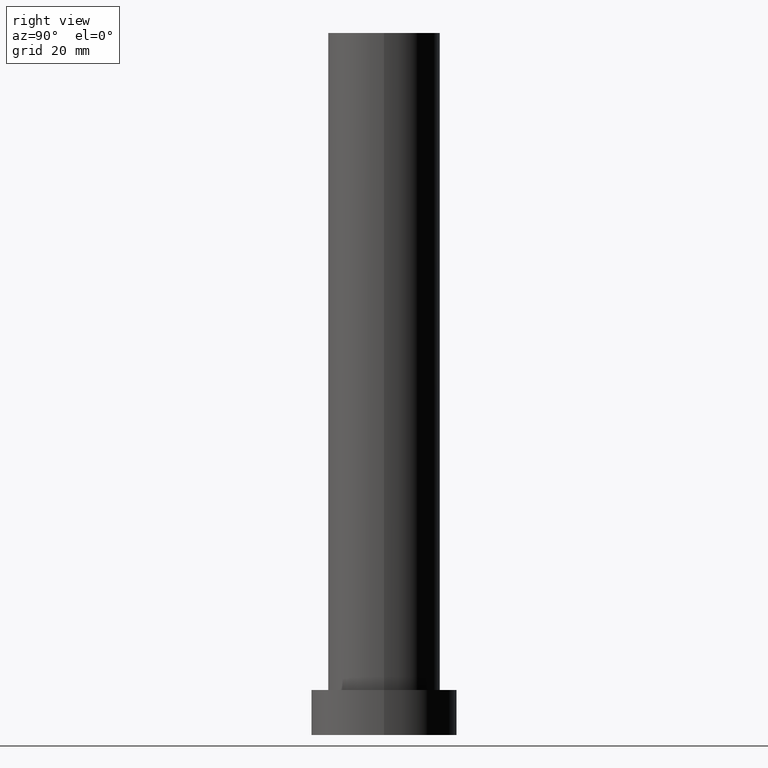
[diagram: clean part render]
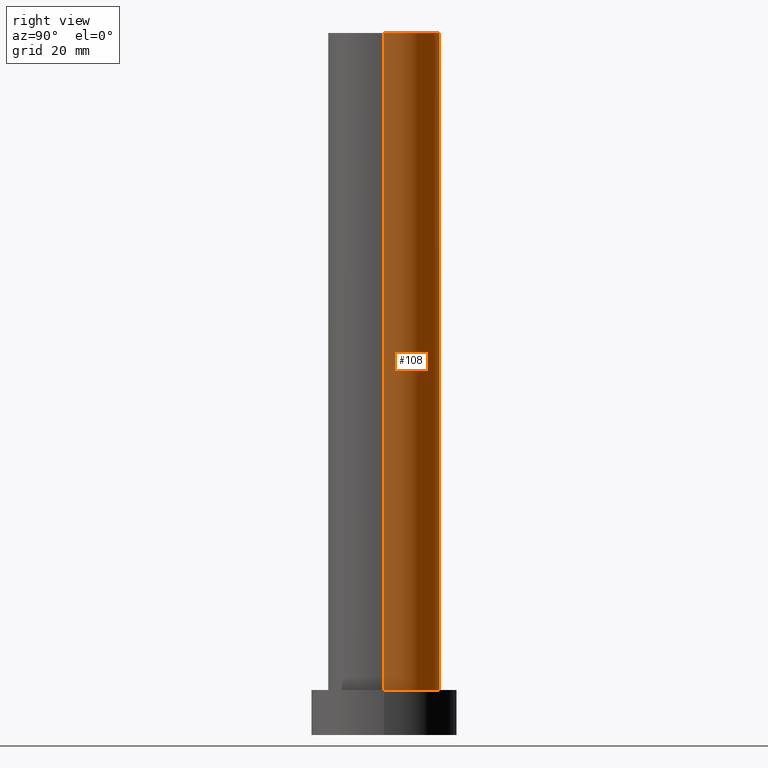
[diagram: same view with one face highlighted and labeled with its STEP entity id]
A machine part, right view. The second image highlights one B-rep face of the part: STEP entity #108.
In plain terms, the highlighted cylindrical surface (partial cylindrical patch) has radius 10 mm, axis along (-0, -0, -1).
Its self-contained STEP definition (entity closure, byte-faithful):
#2 = DIRECTION ( 'NONE',  ( -1.000000000000000000, 0.000000000000000000, 0.000000000000000000 ) ) ;
#13 = CARTESIAN_POINT ( 'NONE',  ( 10.00000000000000000, 1.224646799147353256E-15, 125.0000000000000000 ) ) ;
#16 = EDGE_CURVE ( 'NONE', #43, #254, #49, .T. ) ;
#19 = ORIENTED_EDGE ( 'NONE', *, *, #157, .F. ) ;
#25 = DIRECTION ( 'NONE',  ( 0.000000000000000000, 0.000000000000000000, 1.000000000000000000 ) ) ;
#39 = VERTEX_POINT ( 'NONE', #235 ) ;
#43 = VERTEX_POINT ( 'NONE', #217 ) ;
#49 = CIRCLE ( 'NONE', #227, 10.00000000000000000 ) ;
#61 = CARTESIAN_POINT ( 'NONE',  ( 0.000000000000000000, 0.000000000000000000, 8.000000000000000000 ) ) ;
#82 = LINE ( 'NONE', #86, #225 ) ;
#86 = CARTESIAN_POINT ( 'NONE',  ( -10.00000000000000000, 0.000000000000000000, 125.0000000000000000 ) ) ;
#87 = CIRCLE ( 'NONE', #134, 10.00000000000000000 ) ;
#89 = CARTESIAN_POINT ( 'NONE',  ( 0.000000000000000000, 0.000000000000000000, 125.0000000000000000 ) ) ;
#100 = CARTESIAN_POINT ( 'NONE',  ( 0.000000000000000000, 0.000000000000000000, 125.0000000000000000 ) ) ;
#108 = ADVANCED_FACE ( 'NONE', ( #162 ), #236, .T. ) ;
#130 = DIRECTION ( 'NONE',  ( -0.000000000000000000, -0.000000000000000000, -1.000000000000000000 ) ) ;
#131 = LINE ( 'NONE', #132, #174 ) ;
#132 = CARTESIAN_POINT ( 'NONE',  ( 10.00000000000000000, 1.224646799147353256E-15, 125.0000000000000000 ) ) ;
#134 = AXIS2_PLACEMENT_3D ( 'NONE', #89, #229, #156 ) ;
#139 = VERTEX_POINT ( 'NONE', #13 ) ;
#140 = ORIENTED_EDGE ( 'NONE', *, *, #216, .T. ) ;
#156 = DIRECTION ( 'NONE',  ( 1.000000000000000000, 0.000000000000000000, 0.000000000000000000 ) ) ;
#157 = EDGE_CURVE ( 'NONE', #139, #39, #87, .T. ) ;
#161 = DIRECTION ( 'NONE',  ( 1.000000000000000000, 0.000000000000000000, 0.000000000000000000 ) ) ;
#162 = FACE_OUTER_BOUND ( 'NONE', #181, .T. ) ;
#174 = VECTOR ( 'NONE', #212, 1000.000000000000000 ) ;
#180 = DIRECTION ( 'NONE',  ( -0.000000000000000000, -0.000000000000000000, -1.000000000000000000 ) ) ;
#181 = EDGE_LOOP ( 'NONE', ( #19, #140, #205, #252 ) ) ;
#185 = AXIS2_PLACEMENT_3D ( 'NONE', #100, #180, #2 ) ;
#197 = EDGE_CURVE ( 'NONE', #39, #254, #82, .T. ) ;
#205 = ORIENTED_EDGE ( 'NONE', *, *, #16, .T. ) ;
#212 = DIRECTION ( 'NONE',  ( -0.000000000000000000, -0.000000000000000000, -1.000000000000000000 ) ) ;
#216 = EDGE_CURVE ( 'NONE', #139, #43, #131, .T. ) ;
#217 = CARTESIAN_POINT ( 'NONE',  ( 10.00000000000000000, 1.224646799147353256E-15, 8.000000000000000000 ) ) ;
#225 = VECTOR ( 'NONE', #130, 1000.000000000000000 ) ;
#227 = AXIS2_PLACEMENT_3D ( 'NONE', #61, #25, #161 ) ;
#229 = DIRECTION ( 'NONE',  ( 0.000000000000000000, 0.000000000000000000, 1.000000000000000000 ) ) ;
#235 = CARTESIAN_POINT ( 'NONE',  ( -10.00000000000000000, 0.000000000000000000, 125.0000000000000000 ) ) ;
#236 = CYLINDRICAL_SURFACE ( 'NONE', #185, 10.00000000000000000 ) ;
#242 = CARTESIAN_POINT ( 'NONE',  ( -10.00000000000000000, 0.000000000000000000, 8.000000000000000000 ) ) ;
#252 = ORIENTED_EDGE ( 'NONE', *, *, #197, .F. ) ;
#254 = VERTEX_POINT ( 'NONE', #242 ) ;